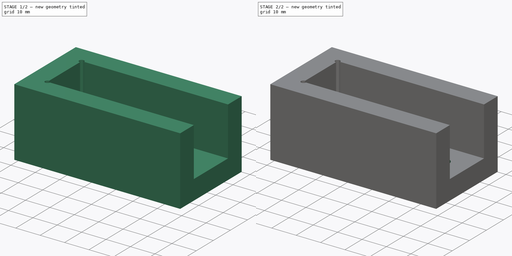
[diagram: build sequence overview — one tinted view per stage of 2, left to right]
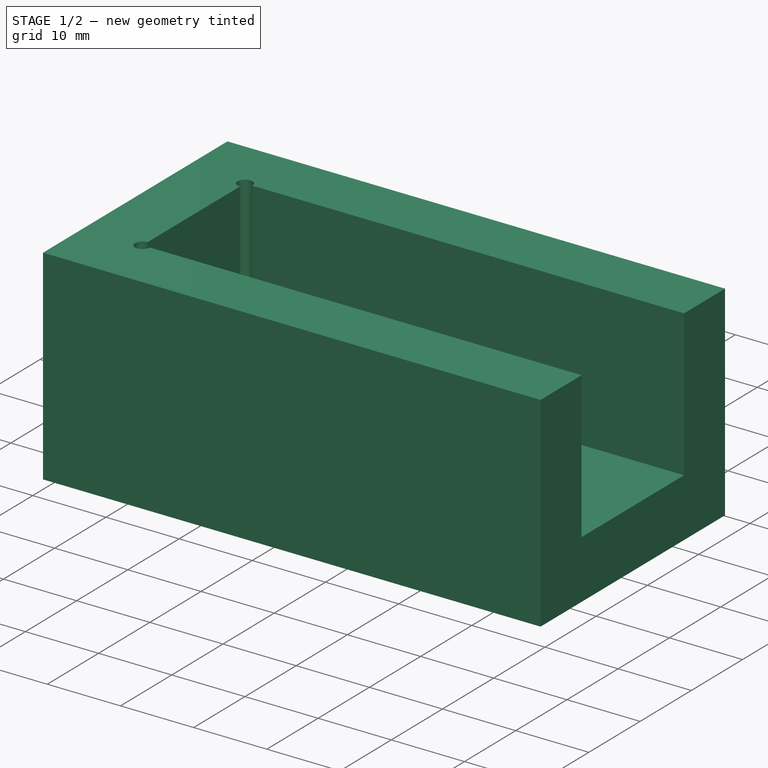
[diagram: stage 1 of 2 — iso view after this stage's code; geometry added in this stage tinted green]
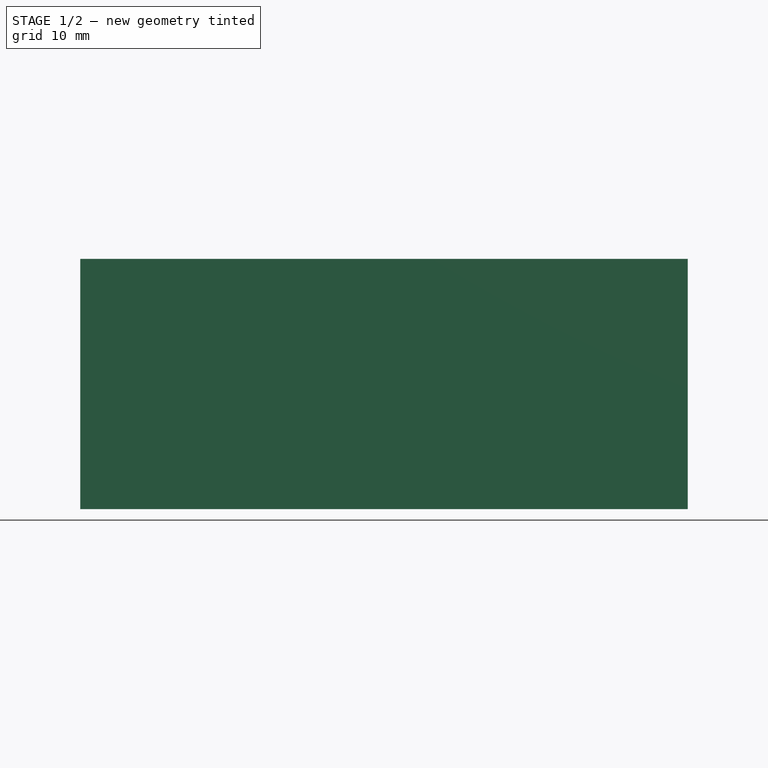
[diagram: stage 1 of 2 — front view after this stage's code; geometry added in this stage tinted green]
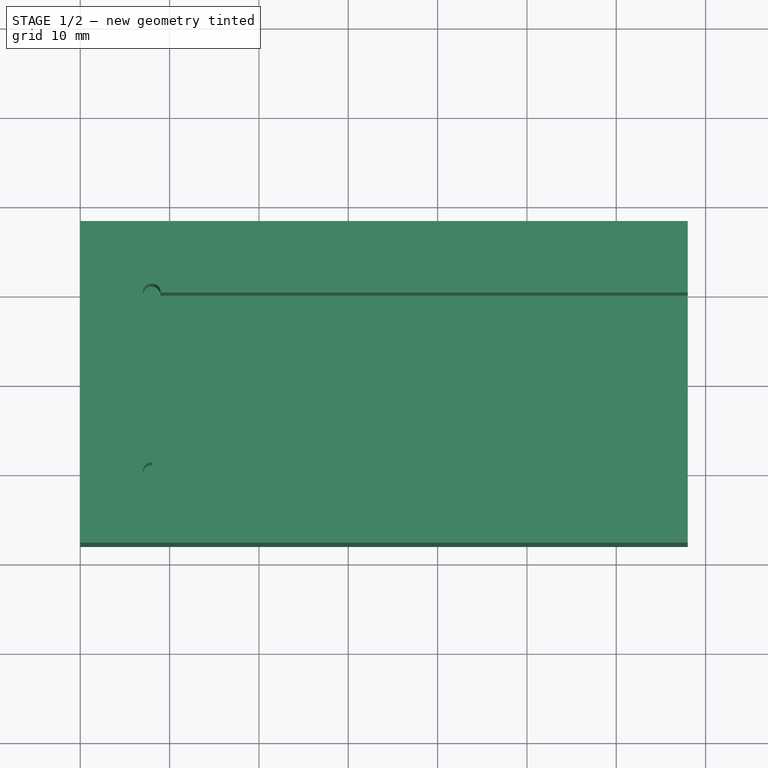
[diagram: stage 1 of 2 — top view after this stage's code; geometry added in this stage tinted green]
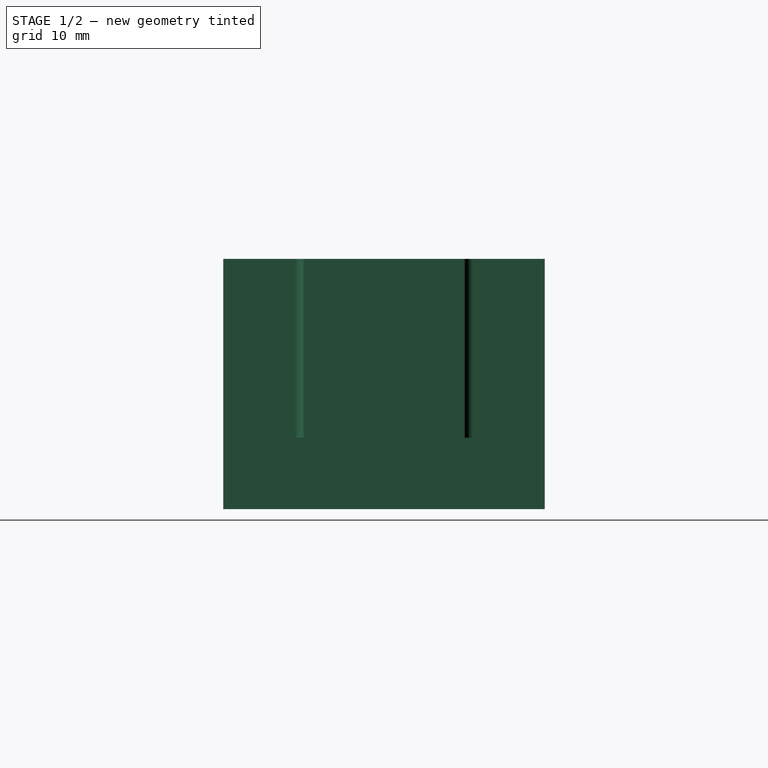
[diagram: stage 1 of 2 — right view after this stage's code; geometry added in this stage tinted green]
FCSTD DOCUMENT  (FreeCAD 0.20R29603 (Git))
Label: 2020_drill_guide
License: All rights reserved
LicenseURL: http://en.wikipedia.org/wiki/All_rights_reserved
objects: Sketcher::SketchObject×4, PartDesign::Pocket×3, PartDesign::Plane×2, Spreadsheet::Sheet×1, PartDesign::Pad×1, PartDesign::Body×1
note: 15 computed .brp shape members not serialized (recipe doc carries the construction recipe); baked Part::Feature solids carry a one-line shape summary decoded from their .brp

FEATURE [Spreadsheet::Sheet] Spreadsheet
  cells = B1=Setting; A2=Beam type; B2(beam_dia)=20; A3=Guide length; B3(Guide_length)=60; A4=Guide wall thickness; B4(guide_wall_thickness)=8; A5=Guide hole size; B5(guide_hole_size)=5.5; A6=Guide hole spacing; B6(guide_hole_spacing)=20
FEATURE [Sketcher::SketchObject] Sketch
  FullyConstrained = true
  MapMode = 5
  Support = -> [XY_Plane]
  expr: Constraints[10] = Spreadsheet.Guide_length + Spreadsheet.guide_wall_thickness
  expr: Constraints[9] = Spreadsheet.beam_dia + Spreadsheet.guide_wall_thickness * 2
  sketch-geometry (4):
    g0: LineSegment StartX=0 StartY=18 StartZ=0 EndX=68 EndY=18 EndZ=0
    g1: LineSegment StartX=68 StartY=18 StartZ=0 EndX=68 EndY=-18 EndZ=0
    g2: LineSegment StartX=68 StartY=-18 StartZ=0 EndX=0 EndY=-18 EndZ=0
    g3: LineSegment StartX=0 StartY=-18 StartZ=0 EndX=0 EndY=18 EndZ=0
  constraints (11):
    c: Coincident(g0,g1)
    c: Coincident(g1,g2)
    c: Coincident(g2,g3)
    c: Coincident(g3,g0)
    c: Horizontal(g0)
    c: Horizontal(g2)
    c: Vertical(g1)
    c: Vertical(g3)
    c: Symmetric(g0,g2,g-1)
    c: Distance(g3) = 36
    c: Distance(g0) = 68
FEATURE [PartDesign::Pad] Pad  label="guide_body"
  Direction = (0,0,1)
  Length = 28
  Length2 = 10
  Profile = -> Sketch
  ReferenceAxis = -> Sketch [N_Axis]
  Type = 0
  expr: Length = Spreadsheet.beam_dia + Spreadsheet.guide_wall_thickness
FEATURE [PartDesign::Plane] DatumPlane  label="guide_top_plane"
  AttachmentOffset = pos=(0,0,28) rot=(0,0,1;0rad)
  Length = 106.638
  MapMode = 2
  Placement = pos=(0,0,28) rot=(0,0,1;0rad)
  ResizeMode = 0
  Support = -> [XY_Plane]
  Width = 63.6382
  expr: .AttachmentOffset.Base.z = Spreadsheet.beam_dia + Spreadsheet.guide_wall_thickness
FEATURE [Sketcher::SketchObject] Sketch001
  FullyConstrained = true
  MapMode = 5
  Placement = pos=(0,0,28) rot=(0,0,1;0rad)
  Support = -> [DatumPlane]
  expr: Constraints[10] = Spreadsheet.Guide_length
  expr: Constraints[8] = Spreadsheet.guide_wall_thickness
  expr: Constraints[9] = Spreadsheet.beam_dia
  sketch-geometry (9):
    g0: LineSegment StartX=8 StartY=10 StartZ=0 EndX=68 EndY=10 EndZ=0
    g1: LineSegment StartX=68 StartY=10 StartZ=0 EndX=68 EndY=-10 EndZ=0
    g2: LineSegment StartX=68 StartY=-10 StartZ=0 EndX=8 EndY=-10 EndZ=0
    g3: LineSegment StartX=8 StartY=-10 StartZ=0 EndX=8 EndY=10 EndZ=0
    g4: ArcOfCircle CenterX=8 CenterY=10 CenterZ=0 NormalX=0 NormalY=0 NormalZ=1 AngleXU=0 Radius=1 StartAngle=-9e-16 EndAngle=4.71239
    g5: ArcOfCircle CenterX=8 CenterY=-10 CenterZ=0 NormalX=0 NormalY=0 NormalZ=1 AngleXU=0 Radius=1 StartAngle=1.5708 EndAngle=6.28319
    g6: LineSegment StartX=68 StartY=10 StartZ=0 EndX=9 EndY=10 EndZ=0
    g7: LineSegment StartX=8 StartY=9 StartZ=0 EndX=8 EndY=-9 EndZ=0
    g8: LineSegment StartX=9 StartY=-10 StartZ=0 EndX=68 EndY=-10 EndZ=0
  constraints (25):
    c: Coincident(g0,g1)
    c: Coincident(g1,g2)
    c: Coincident(g2,g3)
    c: Coincident(g3,g0)
    c: Horizontal(g0)
    c: Horizontal(g2)
    c: Vertical(g1)
    c: Symmetric(g0,g2,g-1)
    c: DistanceX(g-2,g0) = 8
    c: Distance(g3) = 20
    c: Distance(g0) = 60
    c: Coincident(g4,g0)
    c: PointOnObject(g4,g3)
    c: PointOnObject(g4,g0)
    c: Coincident(g5,g2)
    c: PointOnObject(g5,g3)
    c: PointOnObject(g5,g2)
    c: Diameter(g4) = 2
    c: Equal(g4,g5)
    c: Coincident(g6,g1)
    c: Coincident(g6,g4)
    c: Coincident(g7,g4)
    c: Coincident(g7,g5)
    c: Coincident(g8,g5)
    c: Coincident(g8,g1)
FEATURE [PartDesign::Pocket] Pocket  label="guide_cutout"
  BaseFeature = -> Pad
  Direction = (0,0,-1)
  Length = 20
  Length2 = 5
  Profile = -> Sketch001
  ReferenceAxis = -> Sketch001 [N_Axis]
  Type = 0
  expr: Length = Spreadsheet.beam_dia
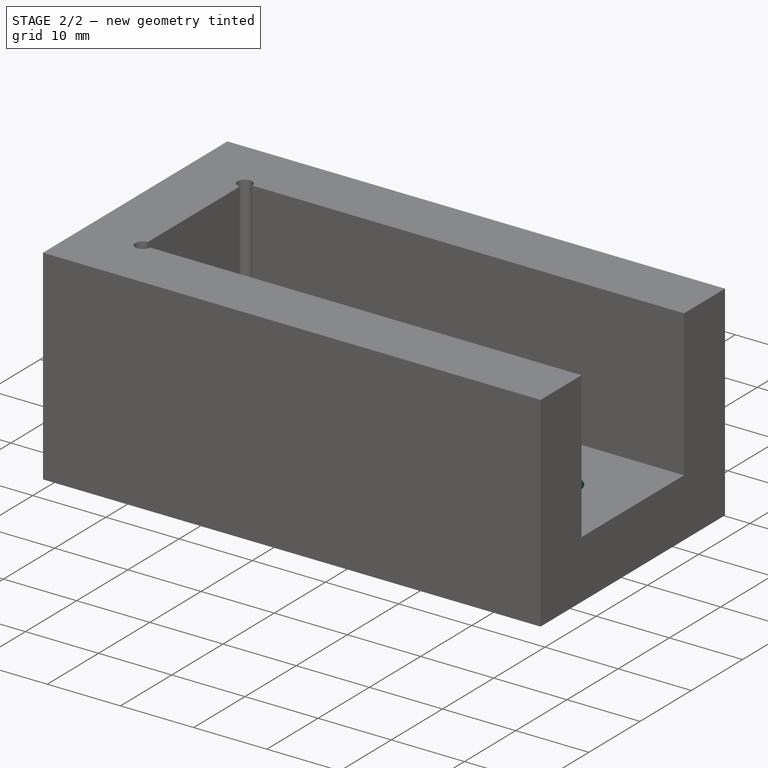
[diagram: stage 2 of 2 — iso view after this stage's code; geometry added in this stage tinted green]
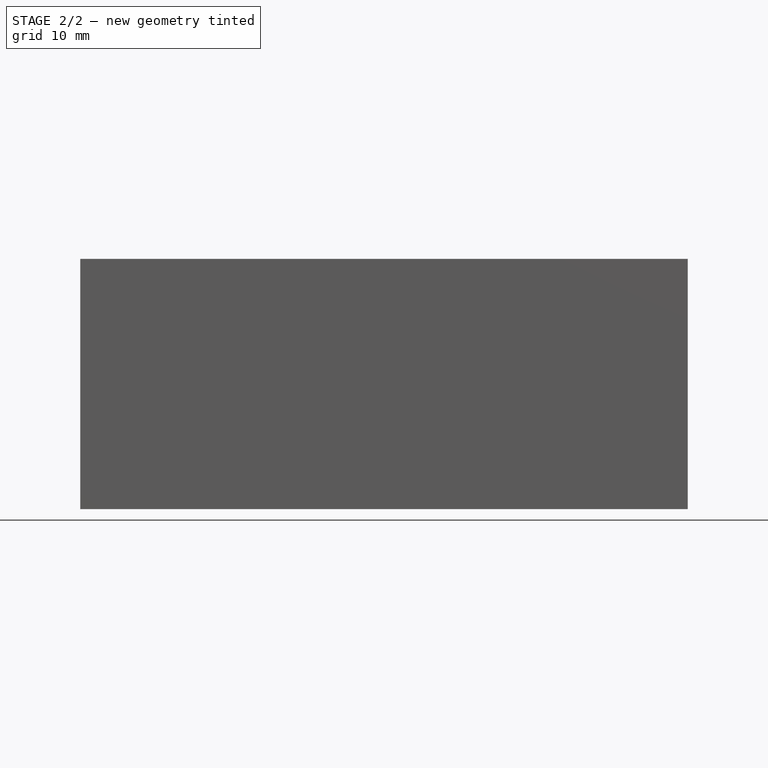
[diagram: stage 2 of 2 — front view after this stage's code; geometry added in this stage tinted green]
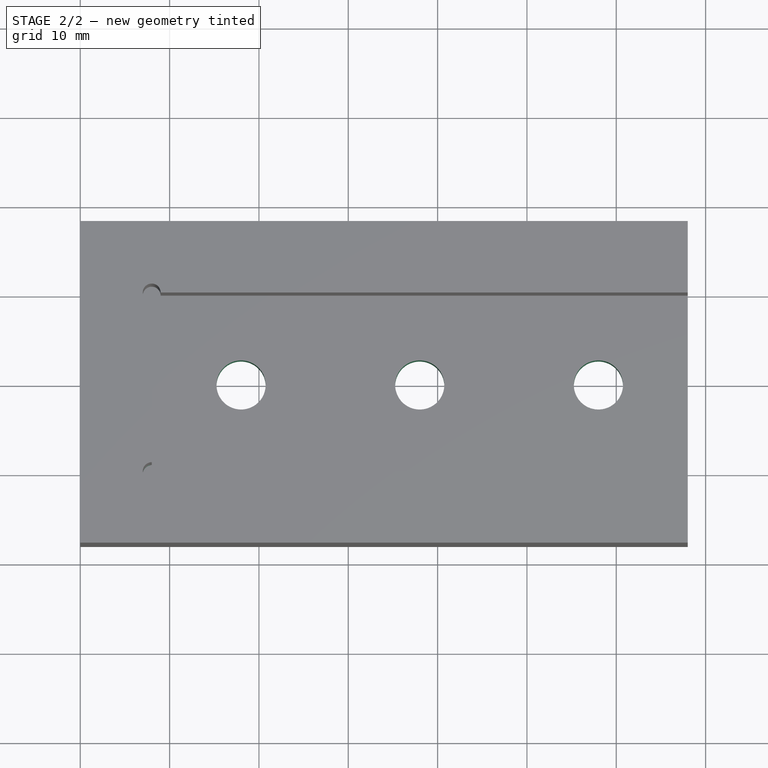
[diagram: stage 2 of 2 — top view after this stage's code; geometry added in this stage tinted green]
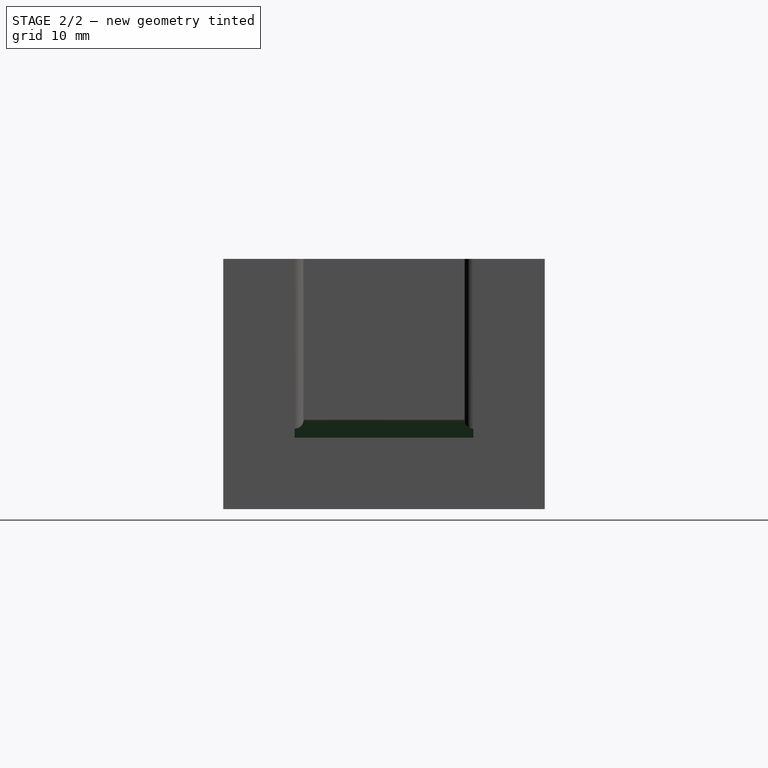
[diagram: stage 2 of 2 — right view after this stage's code; geometry added in this stage tinted green]
FEATURE [Sketcher::SketchObject] Sketch002
  FullyConstrained = true
  MapMode = 5
  Placement = pos=(0,0,28) rot=(0,0,1;0rad)
  Support = -> [DatumPlane]
  expr: Constraints[14] = Spreadsheet.guide_hole_spacing
  expr: Constraints[15] = Spreadsheet.guide_hole_spacing
  expr: Constraints[16] = Spreadsheet.guide_hole_spacing
  expr: Constraints[17] = Spreadsheet.guide_hole_spacing
  expr: Constraints[2] = Spreadsheet.Guide_length + Spreadsheet.guide_wall_thickness
  expr: Constraints[4] = Spreadsheet.guide_wall_thickness + Spreadsheet.guide_hole_spacing / 2
  expr: Constraints[5] = Spreadsheet.guide_hole_size
  sketch-geometry (6):
    g0: LineSegment StartX=0 StartY=0 StartZ=0 EndX=68 EndY=0 EndZ=0
    g1: Circle CenterX=18 CenterY=0 CenterZ=0 NormalX=0 NormalY=0 NormalZ=1 AngleXU=0 Radius=2.75
    g2: Circle CenterX=38 CenterY=0 CenterZ=0 NormalX=0 NormalY=0 NormalZ=1 AngleXU=0 Radius=2.75
    g3: Circle CenterX=58 CenterY=0 CenterZ=0 NormalX=0 NormalY=0 NormalZ=1 AngleXU=0 Radius=2.75
    g4: Circle CenterX=78 CenterY=0 CenterZ=0 NormalX=0 NormalY=0 NormalZ=1 AngleXU=0 Radius=2.75
    g5: Circle CenterX=98 CenterY=0 CenterZ=0 NormalX=0 NormalY=0 NormalZ=1 AngleXU=0 Radius=2.75
  constraints (18):
    c: Coincident(g0,g-1)
    c: PointOnObject(g0,g-1)
    c: Distance(g0) = 68
    c: PointOnObject(g1,g0)
    c: Distance(g1,g0) = 18
    c: Diameter(g1) = 5.5
    c: PointOnObject(g2,g0)
    c: PointOnObject(g3,g0)
    c: PointOnObject(g4,g0)
    c: PointOnObject(g5,g0)
    c: Equal(g1,g2)
    c: Equal(g1,g3)
    c: Equal(g4,g1)
    c: Equal(g5,g1)
    c: Distance(g1,g2) = 20
    c: Distance(g2,g3) = 20
    c: Distance(g3,g4) = 20
    c: Distance(g4,g5) = 20
FEATURE [PartDesign::Pocket] Pocket001  label="guide_drill_holes"
  BaseFeature = -> Pocket
  Direction = (0,0,-1)
  Length = 28
  Length2 = 5
  Profile = -> Sketch002
  ReferenceAxis = -> Sketch002 [N_Axis]
  Type = 0
  expr: Length = Spreadsheet.beam_dia + Spreadsheet.guide_wall_thickness
FEATURE [PartDesign::Plane] DatumPlane001
  AttachmentOffset = pos=(0,0,10) rot=(0,0,1;0rad)
  Length = 107.041
  MapMode = 5
  Placement = pos=(0,-10,-2.2e-15) rot=(1,0,0;1.5708rad)
  ResizeMode = 0
  Support = -> [XZ_Plane]
  Width = 67.0414
  expr: .AttachmentOffset.Base.z = Spreadsheet.beam_dia / 2
FEATURE [Sketcher::SketchObject] Sketch003
  FullyConstrained = true
  MapMode = 5
  Placement = pos=(0,-10,-2.2e-15) rot=(1,0,0;1.5708rad)
  Support = -> [DatumPlane001]
  expr: Constraints[10] = Spreadsheet.guide_wall_thickness
  sketch-geometry (7):
    g0: LineSegment StartX=0 StartY=0 StartZ=0 EndX=8 EndY=0 EndZ=0
    g1: LineSegment StartX=8 StartY=0 StartZ=0 EndX=8 EndY=8 EndZ=0
    g2: LineSegment StartX=8 StartY=8 StartZ=0 EndX=0 EndY=8 EndZ=0
    g3: LineSegment StartX=0 StartY=8 StartZ=0 EndX=0 EndY=0 EndZ=0
    g4: LineSegment StartX=8 StartY=8 StartZ=0 EndX=8 EndY=10 EndZ=0
    g5: LineSegment StartX=8 StartY=10 StartZ=0 EndX=6 EndY=8 EndZ=0
    g6: LineSegment StartX=6 StartY=8 StartZ=0 EndX=8 EndY=8 EndZ=0
  constraints (19):
    c: Coincident(g0,g1)
    c: Coincident(g1,g2)
    c: Coincident(g2,g3)
    c: Coincident(g3,g0)
    c: Horizontal(g0)
    c: Horizontal(g2)
    c: Vertical(g1)
    c: Vertical(g3)
    c: Coincident(g0,g-1)
    c: Equal(g1,g2)
    c: Distance(g1) = 8
    c: Coincident(g1,g4)
    c: Vertical(g4)
    c: Coincident(g4,g5)
    c: PointOnObject(g5,g2)
    c: Coincident(g5,g6)
    c: Coincident(g6,g4)
    c: Equal(g4,g6)
    c: Distance(g4) = 2
FEATURE [PartDesign::Pocket] Pocket002
  BaseFeature = -> Pocket001
  Direction = (0,1,2e-16)
  Length = 20
  Length2 = 5
  Profile = -> Sketch003
  ReferenceAxis = -> Sketch003 [N_Axis]
  Type = 0
  expr: Length = Spreadsheet.beam_dia
FEATURE [PartDesign::Body] Body  label="2020_drill_guide"
  Group = -> [Sketch,Pad,DatumPlane,Sketch001,Pocket,Sketch002,Pocket001,DatumPlane001,Sketch003,Pocket002]
  Origin = -> Origin
  Tip = -> Pocket002
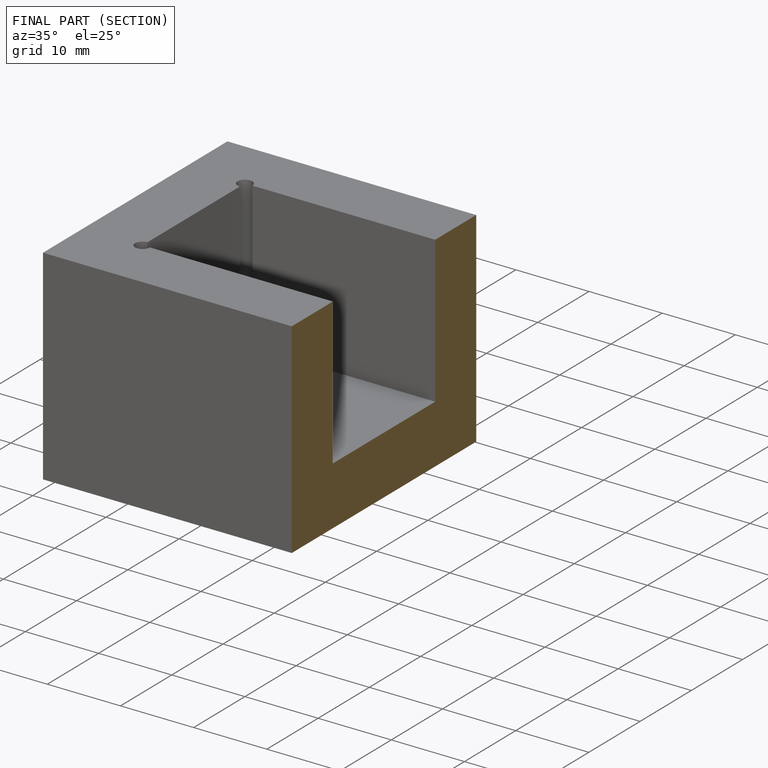
[diagram: finished part — half-section view (interior)]
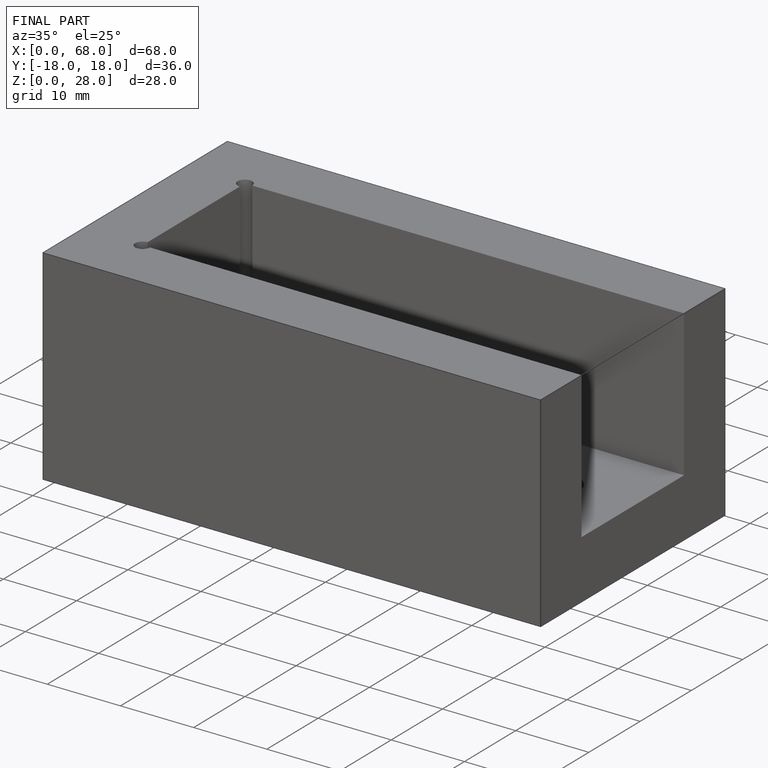
[diagram: finished part — iso view with bounding-box wireframe]
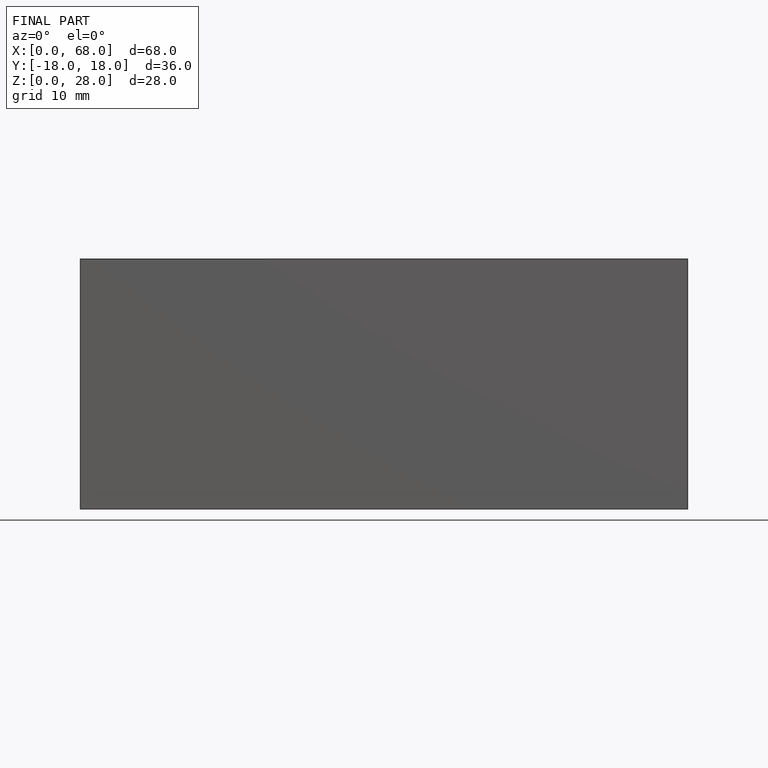
[diagram: finished part — front view with bounding-box wireframe]
